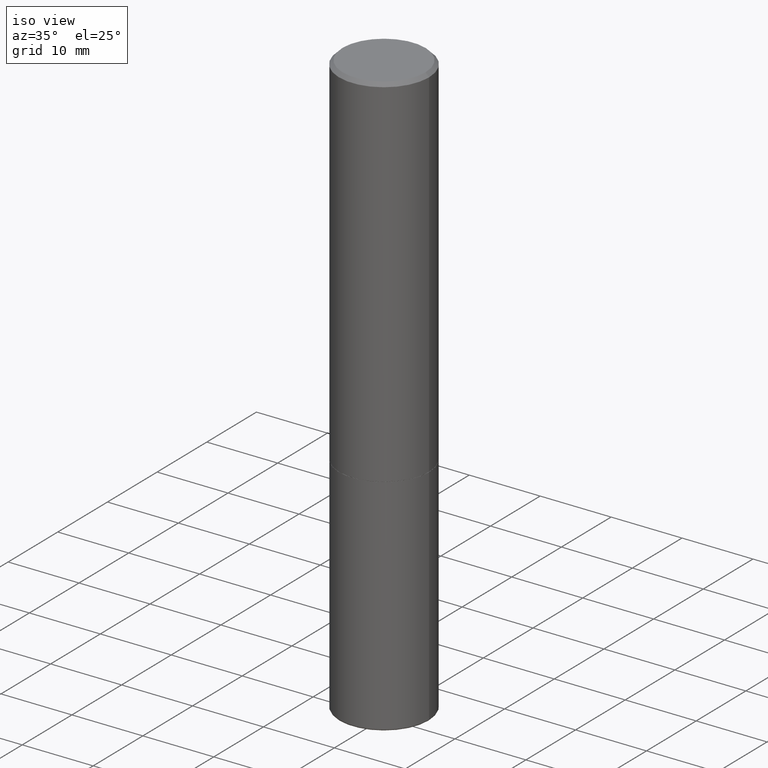
[diagram: clean part render]
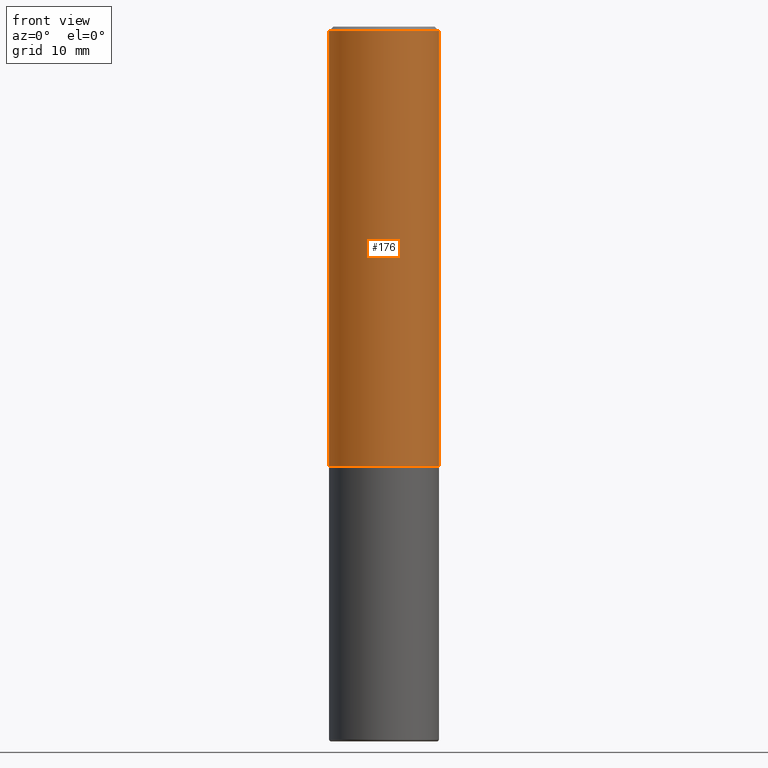
[diagram: tour spotlight — one face highlighted and labeled with its STEP entity id]
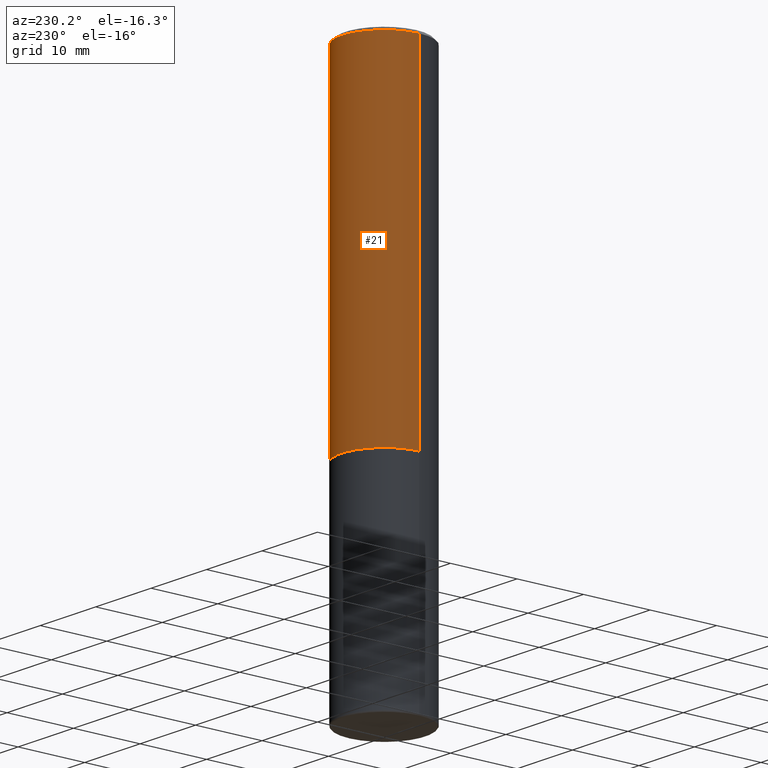
[diagram: tour spotlight — one face highlighted and labeled with its STEP entity id]
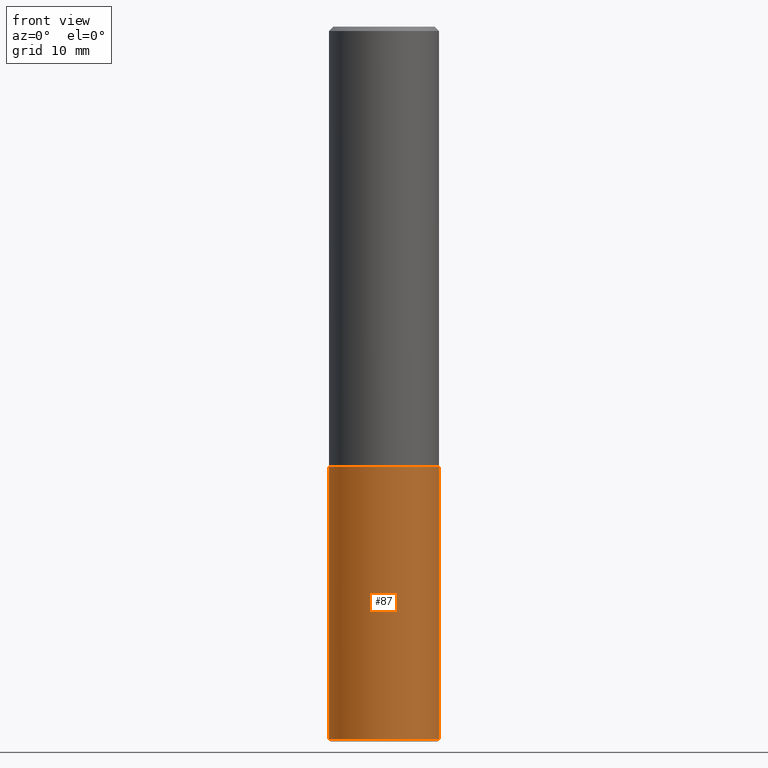
[diagram: tour spotlight — one face highlighted and labeled with its STEP entity id]
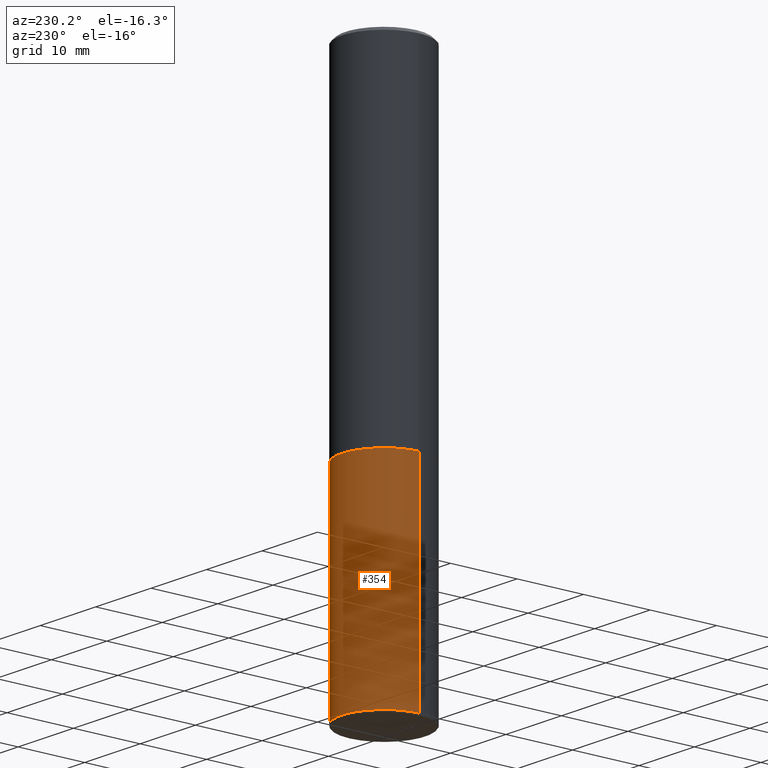
[diagram: tour spotlight — one face highlighted and labeled with its STEP entity id]
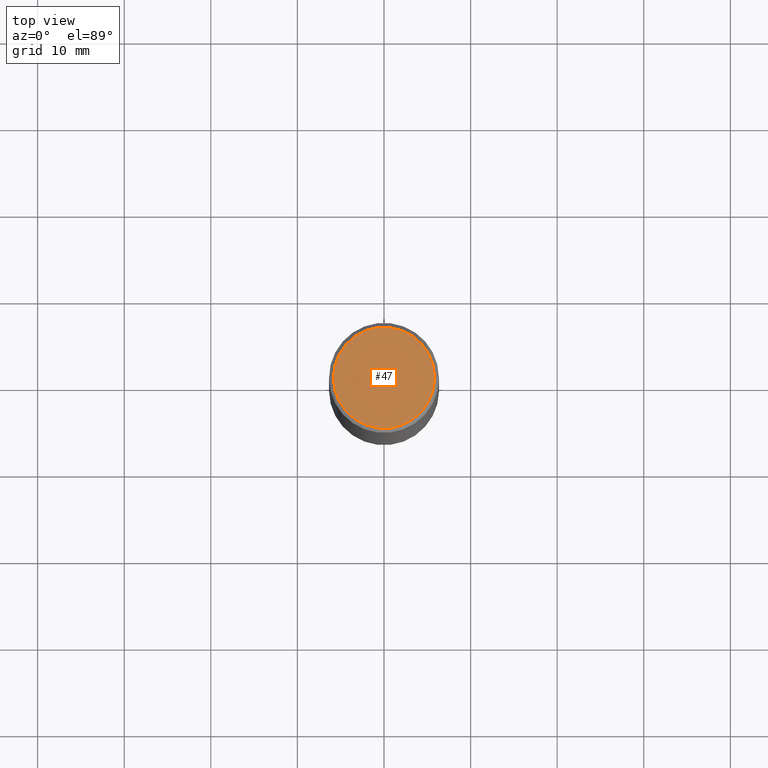
[diagram: tour spotlight — one face highlighted and labeled with its STEP entity id]
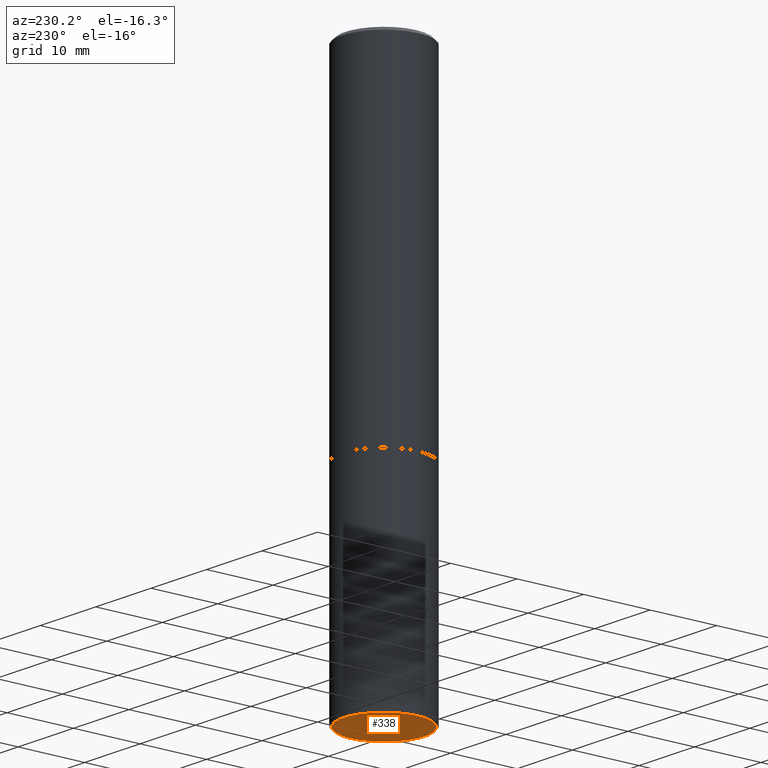
[diagram: tour spotlight — one face highlighted and labeled with its STEP entity id]
A machine part: a face-by-face anatomy tour. The part has 14 B-rep faces; the first image is the clean iso view, then the 6 largest visible faces are spotlighted one at a time (largest first), each with its STEP entity span.

Face 1 — front view, entity #176. In plain terms, the highlighted cylindrical surface (partial cylindrical patch) has radius 6.35 mm, axis along (-0, 0, 1).
Definition (entity closure, byte-faithful):
#10 = DIRECTION ( 'NONE',  ( 1.000000000000000000, -6.982962677686268288E-15, 0.000000000000000000 ) ) ;
#50 = DIRECTION ( 'NONE',  ( -2.445468806185136597E-29, 3.491481338843145583E-15, 1.000000000000000000 ) ) ;
#56 = CARTESIAN_POINT ( 'NONE',  ( -0.2500000000000002220, -1.748293572161901516E-15, -1.999000000000000110 ) ) ;
#76 = EDGE_CURVE ( 'NONE', #287, #391, #167, .T. ) ;
#104 = EDGE_CURVE ( 'NONE', #316, #192, #141, .T. ) ;
#105 = CYLINDRICAL_SURFACE ( 'NONE', #240, 0.2500000000000001110 ) ;
#141 = LINE ( 'NONE', #298, #220 ) ;
#142 = CARTESIAN_POINT ( 'NONE',  ( 0.000000000000000000, 0.000000000000000000, 0.000000000000000000 ) ) ;
#145 = CARTESIAN_POINT ( 'NONE',  ( 0.2500000000000001110, -1.745740669421567664E-15, 1.219044193948984649E-29 ) ) ;
#146 = EDGE_CURVE ( 'NONE', #316, #287, #360, .T. ) ;
#148 = DIRECTION ( 'NONE',  ( 1.000000000000000000, -6.982962677686266711E-15, 0.000000000000000000 ) ) ;
#149 = EDGE_CURVE ( 'NONE', #192, #391, #180, .T. ) ;
#167 = LINE ( 'NONE', #145, #364 ) ;
#176 = ADVANCED_FACE ( 'NONE', ( #266 ), #105, .T. ) ;
#178 = CARTESIAN_POINT ( 'NONE',  ( 0.2500000000000002220, -8.725211865769017202E-15, -1.999000000000000110 ) ) ;
#180 = CIRCLE ( 'NONE', #373, 0.2500000000000000000 ) ;
#192 = VERTEX_POINT ( 'NONE', #401 ) ;
#220 = VECTOR ( 'NONE', #395, 39.37007874015748143 ) ;
#227 = AXIS2_PLACEMENT_3D ( 'NONE', #334, #50, #10 ) ;
#229 = DIRECTION ( 'NONE',  ( -2.445468806185136597E-29, 3.491481338843145583E-15, 1.000000000000000000 ) ) ;
#240 = AXIS2_PLACEMENT_3D ( 'NONE', #142, #229, #326 ) ;
#266 = FACE_OUTER_BOUND ( 'NONE', #297, .T. ) ;
#270 = CARTESIAN_POINT ( 'NONE',  ( 4.890937612370287172E-31, -6.982962677686310098E-17, -0.02000000000000005593 ) ) ;
#287 = VERTEX_POINT ( 'NONE', #178 ) ;
#297 = EDGE_LOOP ( 'NONE', ( #319, #416, #349, #357 ) ) ;
#298 = CARTESIAN_POINT ( 'NONE',  ( -0.2500000000000001110, 1.776356839400251254E-15, -1.229733772563727146E-29 ) ) ;
#316 = VERTEX_POINT ( 'NONE', #56 ) ;
#319 = ORIENTED_EDGE ( 'NONE', *, *, #104, .F. ) ;
#326 = DIRECTION ( 'NONE',  ( 1.000000000000000000, -6.982962677686267499E-15, 4.876176775795936353E-29 ) ) ;
#334 = CARTESIAN_POINT ( 'NONE',  ( 4.888492143564088712E-29, -6.979471196347448158E-15, -1.999000000000000110 ) ) ;
#337 = DIRECTION ( 'NONE',  ( -2.445468806185136877E-29, 3.491481338843145188E-15, 1.000000000000000000 ) ) ;
#349 = ORIENTED_EDGE ( 'NONE', *, *, #76, .T. ) ;
#357 = ORIENTED_EDGE ( 'NONE', *, *, #149, .F. ) ;
#360 = CIRCLE ( 'NONE', #227, 0.2500000000000002220 ) ;
#364 = VECTOR ( 'NONE', #337, 39.37007874015748143 ) ;
#369 = DIRECTION ( 'NONE',  ( -2.445468806185136597E-29, 3.491481338843145583E-15, 1.000000000000000000 ) ) ;
#373 = AXIS2_PLACEMENT_3D ( 'NONE', #270, #369, #148 ) ;
#391 = VERTEX_POINT ( 'NONE', #406 ) ;
#395 = DIRECTION ( 'NONE',  ( -2.445468806185136877E-29, 3.491481338843145188E-15, 1.000000000000000000 ) ) ;
#401 = CARTESIAN_POINT ( 'NONE',  ( -0.2500000000000000000, 1.675911042644703577E-15, -0.02000000000000005593 ) ) ;
#406 = CARTESIAN_POINT ( 'NONE',  ( 0.2500000000000000000, -1.784954126219746189E-15, -0.02000000000000005593 ) ) ;
#416 = ORIENTED_EDGE ( 'NONE', *, *, #146, .T. ) ;

Face 2 — auxiliary view, entity #21. In plain terms, the highlighted cylindrical surface (partial cylindrical patch) has radius 6.35 mm, axis along (-0, 0, 1).
Definition (entity closure, byte-faithful):
#15 = EDGE_CURVE ( 'NONE', #287, #316, #70, .T. ) ;
#21 = ADVANCED_FACE ( 'NONE', ( #74 ), #225, .T. ) ;
#52 = CARTESIAN_POINT ( 'NONE',  ( 4.890937612370287172E-31, -6.982962677686310098E-17, -0.02000000000000005593 ) ) ;
#56 = CARTESIAN_POINT ( 'NONE',  ( -0.2500000000000002220, -1.748293572161901516E-15, -1.999000000000000110 ) ) ;
#59 = DIRECTION ( 'NONE',  ( 1.000000000000000000, -6.982962677686266711E-15, 0.000000000000000000 ) ) ;
#68 = ORIENTED_EDGE ( 'NONE', *, *, #15, .T. ) ;
#70 = CIRCLE ( 'NONE', #359, 0.2500000000000002220 ) ;
#74 = FACE_OUTER_BOUND ( 'NONE', #296, .T. ) ;
#76 = EDGE_CURVE ( 'NONE', #287, #391, #167, .T. ) ;
#91 = DIRECTION ( 'NONE',  ( -2.445468806185136597E-29, 3.491481338843145583E-15, 1.000000000000000000 ) ) ;
#99 = DIRECTION ( 'NONE',  ( 1.000000000000000000, -6.982962677686268288E-15, 0.000000000000000000 ) ) ;
#104 = EDGE_CURVE ( 'NONE', #316, #192, #141, .T. ) ;
#132 = DIRECTION ( 'NONE',  ( -2.445468806185136597E-29, 3.491481338843145583E-15, 1.000000000000000000 ) ) ;
#141 = LINE ( 'NONE', #298, #220 ) ;
#145 = CARTESIAN_POINT ( 'NONE',  ( 0.2500000000000001110, -1.745740669421567664E-15, 1.219044193948984649E-29 ) ) ;
#167 = LINE ( 'NONE', #145, #364 ) ;
#178 = CARTESIAN_POINT ( 'NONE',  ( 0.2500000000000002220, -8.725211865769017202E-15, -1.999000000000000110 ) ) ;
#192 = VERTEX_POINT ( 'NONE', #401 ) ;
#195 = CARTESIAN_POINT ( 'NONE',  ( 0.000000000000000000, 0.000000000000000000, 0.000000000000000000 ) ) ;
#220 = VECTOR ( 'NONE', #395, 39.37007874015748143 ) ;
#225 = CYLINDRICAL_SURFACE ( 'NONE', #352, 0.2500000000000001110 ) ;
#250 = AXIS2_PLACEMENT_3D ( 'NONE', #52, #91, #59 ) ;
#254 = ORIENTED_EDGE ( 'NONE', *, *, #76, .F. ) ;
#255 = ORIENTED_EDGE ( 'NONE', *, *, #104, .T. ) ;
#259 = CARTESIAN_POINT ( 'NONE',  ( 4.888492143564088712E-29, -6.979471196347448158E-15, -1.999000000000000110 ) ) ;
#287 = VERTEX_POINT ( 'NONE', #178 ) ;
#291 = EDGE_CURVE ( 'NONE', #391, #192, #400, .T. ) ;
#296 = EDGE_LOOP ( 'NONE', ( #68, #255, #330, #254 ) ) ;
#298 = CARTESIAN_POINT ( 'NONE',  ( -0.2500000000000001110, 1.776356839400251254E-15, -1.229733772563727146E-29 ) ) ;
#316 = VERTEX_POINT ( 'NONE', #56 ) ;
#322 = DIRECTION ( 'NONE',  ( 1.000000000000000000, -6.982962677686267499E-15, 4.876176775795936353E-29 ) ) ;
#330 = ORIENTED_EDGE ( 'NONE', *, *, #291, .F. ) ;
#337 = DIRECTION ( 'NONE',  ( -2.445468806185136877E-29, 3.491481338843145188E-15, 1.000000000000000000 ) ) ;
#352 = AXIS2_PLACEMENT_3D ( 'NONE', #195, #389, #322 ) ;
#359 = AXIS2_PLACEMENT_3D ( 'NONE', #259, #132, #99 ) ;
#364 = VECTOR ( 'NONE', #337, 39.37007874015748143 ) ;
#389 = DIRECTION ( 'NONE',  ( -2.445468806185136597E-29, 3.491481338843145583E-15, 1.000000000000000000 ) ) ;
#391 = VERTEX_POINT ( 'NONE', #406 ) ;
#395 = DIRECTION ( 'NONE',  ( -2.445468806185136877E-29, 3.491481338843145188E-15, 1.000000000000000000 ) ) ;
#400 = CIRCLE ( 'NONE', #250, 0.2500000000000000000 ) ;
#401 = CARTESIAN_POINT ( 'NONE',  ( -0.2500000000000000000, 1.675911042644703577E-15, -0.02000000000000005593 ) ) ;
#406 = CARTESIAN_POINT ( 'NONE',  ( 0.2500000000000000000, -1.784954126219746189E-15, -0.02000000000000005593 ) ) ;

Face 3 — front view, entity #87. In plain terms, the highlighted cylindrical surface (partial cylindrical patch) has radius 6.35 mm, axis along (-0, 0, 1).
Definition (entity closure, byte-faithful):
#7 = CARTESIAN_POINT ( 'NONE',  ( -0.2500000000000000000, 1.776356839400250465E-15, -1.229733772563726445E-29 ) ) ;
#11 = CARTESIAN_POINT ( 'NONE',  ( -0.2500000000000000000, -7.371324268368791112E-15, -2.000000000000000444 ) ) ;
#19 = CARTESIAN_POINT ( 'NONE',  ( 7.923318932039842394E-29, -1.131239953785179120E-14, -3.239999999999999769 ) ) ;
#28 = VECTOR ( 'NONE', #175, 39.37007874015748143 ) ;
#39 = CYLINDRICAL_SURFACE ( 'NONE', #78, 0.2500000000000000000 ) ;
#42 = FACE_OUTER_BOUND ( 'NONE', #189, .T. ) ;
#67 = ORIENTED_EDGE ( 'NONE', *, *, #226, .F. ) ;
#75 = CARTESIAN_POINT ( 'NONE',  ( 4.890937612370273754E-29, -6.982962677686291954E-15, -2.000000000000000444 ) ) ;
#78 = AXIS2_PLACEMENT_3D ( 'NONE', #332, #174, #82 ) ;
#82 = DIRECTION ( 'NONE',  ( 1.000000000000000000, -6.982962677686266711E-15, 4.876176775795935793E-29 ) ) ;
#86 = DIRECTION ( 'NONE',  ( -2.445468806185136597E-29, 3.491481338843145583E-15, 1.000000000000000000 ) ) ;
#87 = ADVANCED_FACE ( 'NONE', ( #42 ), #39, .T. ) ;
#97 = VERTEX_POINT ( 'NONE', #11 ) ;
#98 = CIRCLE ( 'NONE', #160, 0.2500000000000000000 ) ;
#106 = CARTESIAN_POINT ( 'NONE',  ( 0.2500000000000000000, -8.728703347107858632E-15, -2.000000000000000444 ) ) ;
#134 = ORIENTED_EDGE ( 'NONE', *, *, #219, .F. ) ;
#135 = VERTEX_POINT ( 'NONE', #140 ) ;
#140 = CARTESIAN_POINT ( 'NONE',  ( 0.2499999999999998890, -1.305814020727335945E-14, -3.239999999999999769 ) ) ;
#160 = AXIS2_PLACEMENT_3D ( 'NONE', #19, #86, #271 ) ;
#164 = EDGE_CURVE ( 'NONE', #135, #237, #198, .T. ) ;
#172 = CARTESIAN_POINT ( 'NONE',  ( -0.2499999999999998890, -9.536042698451540734E-15, -3.239999999999999769 ) ) ;
#173 = VERTEX_POINT ( 'NONE', #172 ) ;
#174 = DIRECTION ( 'NONE',  ( -2.445468806185136597E-29, 3.491481338843145583E-15, 1.000000000000000000 ) ) ;
#175 = DIRECTION ( 'NONE',  ( -2.445468806185136877E-29, 3.491481338843145188E-15, 1.000000000000000000 ) ) ;
#179 = CIRCLE ( 'NONE', #260, 0.2500000000000000000 ) ;
#184 = ORIENTED_EDGE ( 'NONE', *, *, #164, .T. ) ;
#189 = EDGE_LOOP ( 'NONE', ( #67, #347, #184, #134 ) ) ;
#197 = LINE ( 'NONE', #7, #289 ) ;
#198 = LINE ( 'NONE', #396, #28 ) ;
#219 = EDGE_CURVE ( 'NONE', #97, #237, #179, .T. ) ;
#226 = EDGE_CURVE ( 'NONE', #173, #97, #197, .T. ) ;
#237 = VERTEX_POINT ( 'NONE', #106 ) ;
#260 = AXIS2_PLACEMENT_3D ( 'NONE', #75, #294, #367 ) ;
#264 = DIRECTION ( 'NONE',  ( -2.445468806185136877E-29, 3.491481338843145188E-15, 1.000000000000000000 ) ) ;
#267 = EDGE_CURVE ( 'NONE', #173, #135, #98, .T. ) ;
#271 = DIRECTION ( 'NONE',  ( 1.000000000000000000, -6.982962677686270655E-15, 0.000000000000000000 ) ) ;
#289 = VECTOR ( 'NONE', #264, 39.37007874015748143 ) ;
#294 = DIRECTION ( 'NONE',  ( -2.445468806185136597E-29, 3.491481338843145583E-15, 1.000000000000000000 ) ) ;
#332 = CARTESIAN_POINT ( 'NONE',  ( 0.000000000000000000, 0.000000000000000000, 0.000000000000000000 ) ) ;
#347 = ORIENTED_EDGE ( 'NONE', *, *, #267, .T. ) ;
#367 = DIRECTION ( 'NONE',  ( 1.000000000000000000, -6.982962677686266711E-15, 0.000000000000000000 ) ) ;
#396 = CARTESIAN_POINT ( 'NONE',  ( 0.2500000000000000000, -1.745740669421566678E-15, 1.219044193948983948E-29 ) ) ;

Face 4 — auxiliary view, entity #354. In plain terms, the highlighted cylindrical surface (partial cylindrical patch) has radius 6.35 mm, axis along (-0, 0, 1).
Definition (entity closure, byte-faithful):
#6 = AXIS2_PLACEMENT_3D ( 'NONE', #304, #208, #382 ) ;
#7 = CARTESIAN_POINT ( 'NONE',  ( -0.2500000000000000000, 1.776356839400250465E-15, -1.229733772563726445E-29 ) ) ;
#11 = CARTESIAN_POINT ( 'NONE',  ( -0.2500000000000000000, -7.371324268368791112E-15, -2.000000000000000444 ) ) ;
#28 = VECTOR ( 'NONE', #175, 39.37007874015748143 ) ;
#46 = EDGE_LOOP ( 'NONE', ( #273, #130, #123, #202 ) ) ;
#83 = AXIS2_PLACEMENT_3D ( 'NONE', #341, #248, #177 ) ;
#92 = EDGE_CURVE ( 'NONE', #135, #173, #168, .T. ) ;
#93 = FACE_OUTER_BOUND ( 'NONE', #46, .T. ) ;
#97 = VERTEX_POINT ( 'NONE', #11 ) ;
#106 = CARTESIAN_POINT ( 'NONE',  ( 0.2500000000000000000, -8.728703347107858632E-15, -2.000000000000000444 ) ) ;
#114 = DIRECTION ( 'NONE',  ( -2.445468806185136597E-29, 3.491481338843145583E-15, 1.000000000000000000 ) ) ;
#123 = ORIENTED_EDGE ( 'NONE', *, *, #281, .F. ) ;
#130 = ORIENTED_EDGE ( 'NONE', *, *, #226, .T. ) ;
#135 = VERTEX_POINT ( 'NONE', #140 ) ;
#140 = CARTESIAN_POINT ( 'NONE',  ( 0.2499999999999998890, -1.305814020727335945E-14, -3.239999999999999769 ) ) ;
#164 = EDGE_CURVE ( 'NONE', #135, #237, #198, .T. ) ;
#168 = CIRCLE ( 'NONE', #404, 0.2500000000000000000 ) ;
#172 = CARTESIAN_POINT ( 'NONE',  ( -0.2499999999999998890, -9.536042698451540734E-15, -3.239999999999999769 ) ) ;
#173 = VERTEX_POINT ( 'NONE', #172 ) ;
#175 = DIRECTION ( 'NONE',  ( -2.445468806185136877E-29, 3.491481338843145188E-15, 1.000000000000000000 ) ) ;
#177 = DIRECTION ( 'NONE',  ( 1.000000000000000000, -6.982962677686266711E-15, 0.000000000000000000 ) ) ;
#197 = LINE ( 'NONE', #7, #289 ) ;
#198 = LINE ( 'NONE', #396, #28 ) ;
#202 = ORIENTED_EDGE ( 'NONE', *, *, #164, .F. ) ;
#208 = DIRECTION ( 'NONE',  ( -2.445468806185136597E-29, 3.491481338843145583E-15, 1.000000000000000000 ) ) ;
#213 = CYLINDRICAL_SURFACE ( 'NONE', #6, 0.2500000000000000000 ) ;
#226 = EDGE_CURVE ( 'NONE', #173, #97, #197, .T. ) ;
#237 = VERTEX_POINT ( 'NONE', #106 ) ;
#248 = DIRECTION ( 'NONE',  ( -2.445468806185136597E-29, 3.491481338843145583E-15, 1.000000000000000000 ) ) ;
#264 = DIRECTION ( 'NONE',  ( -2.445468806185136877E-29, 3.491481338843145188E-15, 1.000000000000000000 ) ) ;
#273 = ORIENTED_EDGE ( 'NONE', *, *, #92, .T. ) ;
#281 = EDGE_CURVE ( 'NONE', #237, #97, #336, .T. ) ;
#289 = VECTOR ( 'NONE', #264, 39.37007874015748143 ) ;
#293 = CARTESIAN_POINT ( 'NONE',  ( 7.923318932039842394E-29, -1.131239953785179120E-14, -3.239999999999999769 ) ) ;
#304 = CARTESIAN_POINT ( 'NONE',  ( 0.000000000000000000, 0.000000000000000000, 0.000000000000000000 ) ) ;
#336 = CIRCLE ( 'NONE', #83, 0.2500000000000000000 ) ;
#341 = CARTESIAN_POINT ( 'NONE',  ( 4.890937612370273754E-29, -6.982962677686291954E-15, -2.000000000000000444 ) ) ;
#354 = ADVANCED_FACE ( 'NONE', ( #93 ), #213, .T. ) ;
#382 = DIRECTION ( 'NONE',  ( 1.000000000000000000, -6.982962677686266711E-15, 4.876176775795935793E-29 ) ) ;
#396 = CARTESIAN_POINT ( 'NONE',  ( 0.2500000000000000000, -1.745740669421566678E-15, 1.219044193948983948E-29 ) ) ;
#402 = DIRECTION ( 'NONE',  ( 1.000000000000000000, -6.982962677686270655E-15, 0.000000000000000000 ) ) ;
#404 = AXIS2_PLACEMENT_3D ( 'NONE', #293, #114, #402 ) ;

Face 5 — top view, entity #47. In plain terms, the highlighted planar face has unit normal (0, -0, -1).
Definition (entity closure, byte-faithful):
#38 = FACE_OUTER_BOUND ( 'NONE', #119, .T. ) ;
#47 = ADVANCED_FACE ( 'NONE', ( #38 ), #165, .F. ) ;
#66 = DIRECTION ( 'NONE',  ( 2.438088387897960049E-29, -3.491481338843145188E-15, -1.000000000000000000 ) ) ;
#81 = CARTESIAN_POINT ( 'NONE',  ( -1.148236555768741665E-45, 1.639377487418492057E-31, 4.695363739110452099E-17 ) ) ;
#100 = CARTESIAN_POINT ( 'NONE',  ( 1.606081415867840870E-15, 0.2299999999999999267, -7.795638892383710465E-16 ) ) ;
#107 = CARTESIAN_POINT ( 'NONE',  ( -0.2299999999999999267, 1.640996229256272519E-15, 4.695363739109317495E-17 ) ) ;
#118 = CARTESIAN_POINT ( 'NONE',  ( -1.148236555768741665E-45, 1.639377487418492057E-31, 4.695363739110452099E-17 ) ) ;
#119 = EDGE_LOOP ( 'NONE', ( #335, #409 ) ) ;
#122 = VERTEX_POINT ( 'NONE', #107 ) ;
#165 = PLANE ( 'NONE',  #394 ) ;
#230 = DIRECTION ( 'NONE',  ( -2.445468806185136597E-29, 3.491481338843145583E-15, 1.000000000000000000 ) ) ;
#241 = DIRECTION ( 'NONE',  ( -2.445468806185136597E-29, 3.491481338843145583E-15, 1.000000000000000000 ) ) ;
#247 = EDGE_CURVE ( 'NONE', #122, #377, #412, .T. ) ;
#274 = AXIS2_PLACEMENT_3D ( 'NONE', #81, #230, #363 ) ;
#306 = AXIS2_PLACEMENT_3D ( 'NONE', #118, #241, #343 ) ;
#335 = ORIENTED_EDGE ( 'NONE', *, *, #247, .T. ) ;
#343 = DIRECTION ( 'NONE',  ( 1.000000000000000000, -6.982962677686267499E-15, 4.875813741439101456E-29 ) ) ;
#345 = CIRCLE ( 'NONE', #306, 0.2299999999999999267 ) ;
#358 = DIRECTION ( 'NONE',  ( -1.000000000000000000, 6.982962677686265922E-15, -4.876176775795935793E-29 ) ) ;
#363 = DIRECTION ( 'NONE',  ( 1.000000000000000000, -6.982962677686267499E-15, 4.875813741439101456E-29 ) ) ;
#374 = CARTESIAN_POINT ( 'NONE',  ( 0.2299999999999999267, -1.681434332853598617E-15, 4.695363739111602110E-17 ) ) ;
#377 = VERTEX_POINT ( 'NONE', #374 ) ;
#394 = AXIS2_PLACEMENT_3D ( 'NONE', #100, #66, #358 ) ;
#409 = ORIENTED_EDGE ( 'NONE', *, *, #414, .T. ) ;
#412 = CIRCLE ( 'NONE', #274, 0.2299999999999999267 ) ;
#414 = EDGE_CURVE ( 'NONE', #377, #122, #345, .T. ) ;

Face 6 — auxiliary view, entity #338. In plain terms, the highlighted planar face has unit normal (0, -0, -1).
Definition (entity closure, byte-faithful):
#27 = DIRECTION ( 'NONE',  ( 2.438088387897960049E-29, -3.491481338843145188E-15, -1.000000000000000000 ) ) ;
#33 = ORIENTED_EDGE ( 'NONE', *, *, #170, .F. ) ;
#63 = CIRCLE ( 'NONE', #314, 0.2399999999999999911 ) ;
#89 = CARTESIAN_POINT ( 'NONE',  ( 7.947773620101692818E-29, -1.134731435124022127E-14, -3.249999999999999556 ) ) ;
#102 = AXIS2_PLACEMENT_3D ( 'NONE', #365, #362, #265 ) ;
#143 = CIRCLE ( 'NONE', #102, 0.2399999999999999911 ) ;
#154 = VERTEX_POINT ( 'NONE', #205 ) ;
#156 = FACE_OUTER_BOUND ( 'NONE', #351, .T. ) ;
#170 = EDGE_CURVE ( 'NONE', #278, #154, #143, .T. ) ;
#182 = DIRECTION ( 'NONE',  ( 1.000000000000000000, -6.982962677686268288E-15, 0.000000000000000000 ) ) ;
#205 = CARTESIAN_POINT ( 'NONE',  ( -0.2399999999999999911, -9.589027241933761599E-15, -3.249999999999999556 ) ) ;
#210 = DIRECTION ( 'NONE',  ( -2.445468806185136597E-29, 3.491481338843145583E-15, 1.000000000000000000 ) ) ;
#211 = AXIS2_PLACEMENT_3D ( 'NONE', #216, #27, #403 ) ;
#216 = CARTESIAN_POINT ( 'NONE',  ( 1.311429661075389283E-28, -3.948559368399508239E-15, -3.249999999999999556 ) ) ;
#265 = DIRECTION ( 'NONE',  ( 1.000000000000000000, -6.982962677686268288E-15, 0.000000000000000000 ) ) ;
#272 = PLANE ( 'NONE',  #211 ) ;
#278 = VERTEX_POINT ( 'NONE', #348 ) ;
#314 = AXIS2_PLACEMENT_3D ( 'NONE', #89, #210, #182 ) ;
#325 = ORIENTED_EDGE ( 'NONE', *, *, #398, .F. ) ;
#338 = ADVANCED_FACE ( 'NONE', ( #156 ), #272, .T. ) ;
#348 = CARTESIAN_POINT ( 'NONE',  ( 0.2399999999999999911, -1.302322539388492623E-14, -3.249999999999999556 ) ) ;
#351 = EDGE_LOOP ( 'NONE', ( #33, #325 ) ) ;
#362 = DIRECTION ( 'NONE',  ( -2.445468806185136597E-29, 3.491481338843145583E-15, 1.000000000000000000 ) ) ;
#365 = CARTESIAN_POINT ( 'NONE',  ( 7.947773620101692818E-29, -1.134731435124022127E-14, -3.249999999999999556 ) ) ;
#398 = EDGE_CURVE ( 'NONE', #154, #278, #63, .T. ) ;
#403 = DIRECTION ( 'NONE',  ( -1.000000000000000000, 6.982962677686265922E-15, -4.876176775795935793E-29 ) ) ;